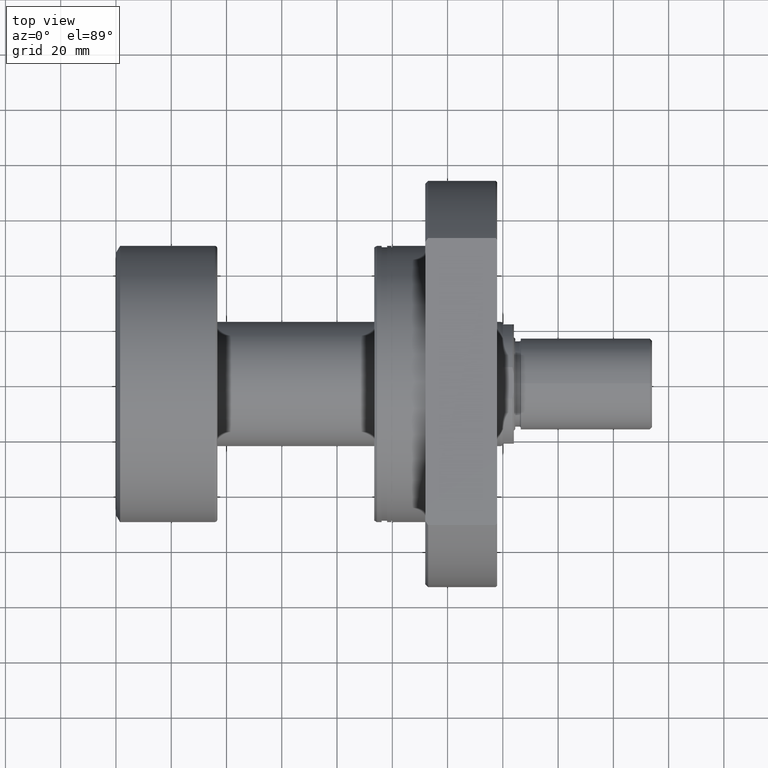
[diagram: clean part render]
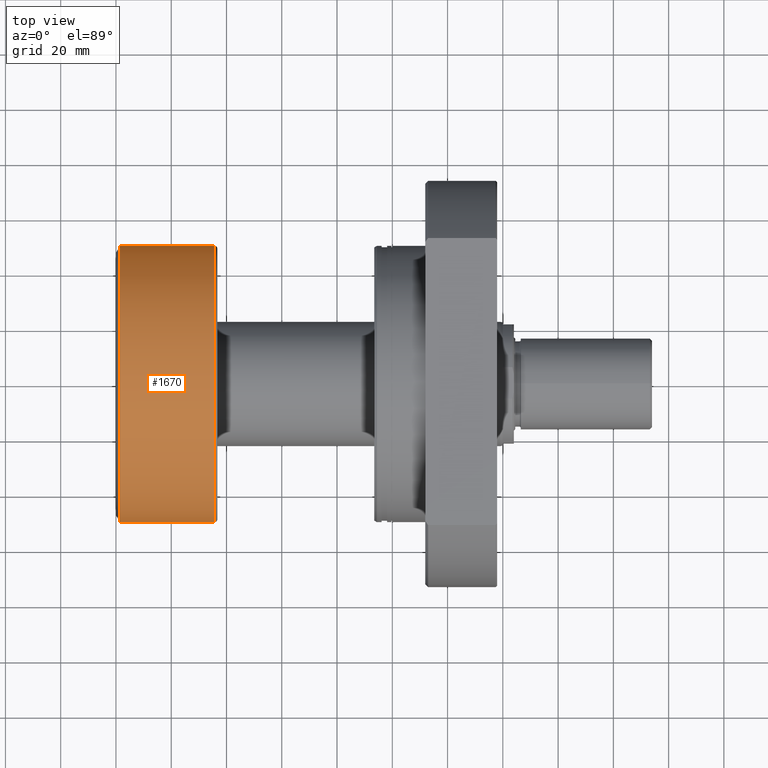
[diagram: same view with one face highlighted and labeled with its STEP entity id]
A machine part, top view. The second image highlights one B-rep face of the part: STEP entity #1670.
In plain terms, the highlighted cylindrical surface (partial cylindrical patch) has radius 50 mm, axis along (-1, -0, -0).
Its self-contained STEP definition (entity closure, byte-faithful):
#66 = AXIS2_PLACEMENT_3D ( 'NONE', #2485, #2176, #520 ) ;
#212 = DIRECTION ( 'NONE',  ( -1.000000000000000000, -1.069542322069065801E-17, -0.000000000000000000 ) ) ;
#273 = EDGE_CURVE ( 'NONE', #2487, #525, #1443, .T. ) ;
#433 = VECTOR ( 'NONE', #2167, 1000.000000000000000 ) ;
#481 = FACE_OUTER_BOUND ( 'NONE', #2162, .T. ) ;
#520 = DIRECTION ( 'NONE',  ( 8.673617379884035472E-18, -1.000000000000000000, 0.000000000000000000 ) ) ;
#525 = VERTEX_POINT ( 'NONE', #1204 ) ;
#584 = EDGE_CURVE ( 'NONE', #790, #525, #1784, .T. ) ;
#589 = CARTESIAN_POINT ( 'NONE',  ( 35.70000000000000284, 50.00000000000000000, 6.123233995736766085E-15 ) ) ;
#634 = ORIENTED_EDGE ( 'NONE', *, *, #3547, .T. ) ;
#639 = ORIENTED_EDGE ( 'NONE', *, *, #584, .T. ) ;
#790 = VERTEX_POINT ( 'NONE', #589 ) ;
#1009 = CARTESIAN_POINT ( 'NONE',  ( 35.70000000000000284, -50.00000000000000000, 0.000000000000000000 ) ) ;
#1142 = ORIENTED_EDGE ( 'NONE', *, *, #273, .F. ) ;
#1204 = CARTESIAN_POINT ( 'NONE',  ( 1.500000000000005551, 50.00000000000000000, 0.000000000000000000 ) ) ;
#1310 = CARTESIAN_POINT ( 'NONE',  ( -5.347711610345329959E-16, 50.00000000000000000, 6.123233995736766085E-15 ) ) ;
#1351 = CARTESIAN_POINT ( 'NONE',  ( 35.70000000000000284, 3.818266089786565135E-16, 0.000000000000000000 ) ) ;
#1422 = CARTESIAN_POINT ( 'NONE',  ( 5.347711610345329959E-16, -50.00000000000000000, 0.000000000000000000 ) ) ;
#1443 = CIRCLE ( 'NONE', #66, 50.00000000000000000 ) ;
#1670 = ADVANCED_FACE ( 'NONE', ( #481 ), #2794, .T. ) ;
#1675 = CARTESIAN_POINT ( 'NONE',  ( 0.000000000000000000, 0.000000000000000000, 0.000000000000000000 ) ) ;
#1684 = DIRECTION ( 'NONE',  ( -1.000000000000000000, -1.069542322069065801E-17, -0.000000000000000000 ) ) ;
#1778 = VECTOR ( 'NONE', #1684, 1000.000000000000000 ) ;
#1784 = LINE ( 'NONE', #1310, #433 ) ;
#2158 = DIRECTION ( 'NONE',  ( 1.069542322069065955E-17, -1.000000000000000000, 0.000000000000000000 ) ) ;
#2162 = EDGE_LOOP ( 'NONE', ( #634, #639, #1142, #2708 ) ) ;
#2167 = DIRECTION ( 'NONE',  ( -1.000000000000000000, -1.069542322069065801E-17, -0.000000000000000000 ) ) ;
#2176 = DIRECTION ( 'NONE',  ( -1.000000000000000000, -1.069542322069065801E-17, -0.000000000000000000 ) ) ;
#2463 = DIRECTION ( 'NONE',  ( -1.000000000000000000, -1.069542322069065801E-17, -0.000000000000000000 ) ) ;
#2485 = CARTESIAN_POINT ( 'NONE',  ( 1.500000000000005995, 1.604313483103604941E-17, 0.000000000000000000 ) ) ;
#2487 = VERTEX_POINT ( 'NONE', #2965 ) ;
#2514 = DIRECTION ( 'NONE',  ( 0.000000000000000000, -1.000000000000000000, 0.000000000000000000 ) ) ;
#2536 = LINE ( 'NONE', #1422, #1778 ) ;
#2708 = ORIENTED_EDGE ( 'NONE', *, *, #3632, .F. ) ;
#2794 = CYLINDRICAL_SURFACE ( 'NONE', #3660, 50.00000000000000000 ) ;
#2883 = VERTEX_POINT ( 'NONE', #1009 ) ;
#2965 = CARTESIAN_POINT ( 'NONE',  ( 1.500000000000006217, -50.00000000000000000, 6.123233995736766085E-15 ) ) ;
#3258 = CIRCLE ( 'NONE', #3494, 50.00000000000000000 ) ;
#3494 = AXIS2_PLACEMENT_3D ( 'NONE', #1351, #212, #2514 ) ;
#3547 = EDGE_CURVE ( 'NONE', #2883, #790, #3258, .T. ) ;
#3632 = EDGE_CURVE ( 'NONE', #2883, #2487, #2536, .T. ) ;
#3660 = AXIS2_PLACEMENT_3D ( 'NONE', #1675, #2463, #2158 ) ;